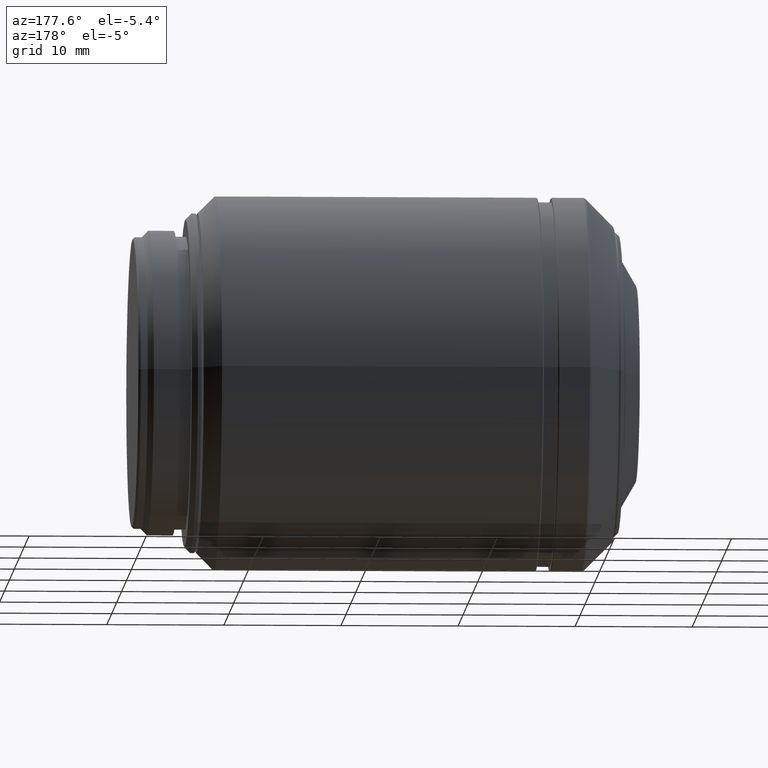
[diagram: clean part render]
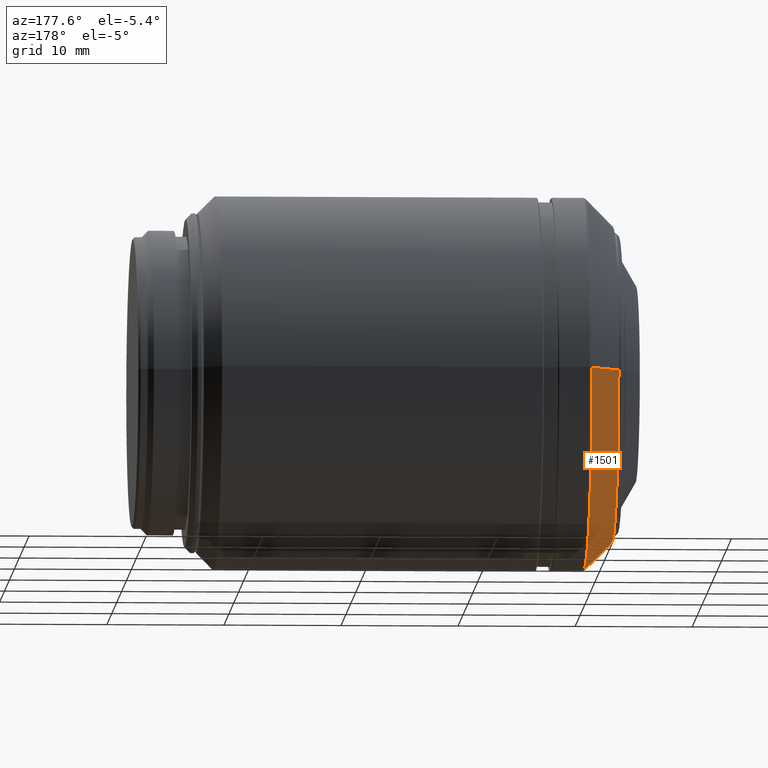
[diagram: same view with one face highlighted and labeled with its STEP entity id]
A machine part, auxiliary view. The second image highlights one B-rep face of the part: STEP entity #1501.
In plain terms, the highlighted conical surface has half-angle 45 deg.
Its self-contained STEP definition (entity closure, byte-faithful):
#31 = DIRECTION ( 'NONE',  ( 0.7071067811865480168, -0.7071067811865470176, 0.000000000000000000 ) ) ;
#52 = CARTESIAN_POINT ( 'NONE',  ( -7.740000000000000213, 13.50000000000000000, -1.653273178848930022E-15 ) ) ;
#53 = DIRECTION ( 'NONE',  ( 0.7071067811865474617, 0.7071067811865474617, -8.659560562354911904E-17 ) ) ;
#57 = ORIENTED_EDGE ( 'NONE', *, *, #393, .T. ) ;
#142 = VERTEX_POINT ( 'NONE', #559 ) ;
#173 = EDGE_CURVE ( 'NONE', #1019, #1447, #615, .T. ) ;
#179 = CARTESIAN_POINT ( 'NONE',  ( -7.740000000000000213, -5.166296783913079974E-15, 0.000000000000000000 ) ) ;
#201 = DIRECTION ( 'NONE',  ( 1.000000000000000000, 1.415423776414539960E-16, 0.000000000000000000 ) ) ;
#203 = CARTESIAN_POINT ( 'NONE',  ( -7.740000000000000213, -13.50000000000000000, 0.000000000000000000 ) ) ;
#320 = EDGE_CURVE ( 'NONE', #1019, #142, #1432, .T. ) ;
#335 = EDGE_LOOP ( 'NONE', ( #530, #57, #371, #1289 ) ) ;
#371 = ORIENTED_EDGE ( 'NONE', *, *, #1485, .F. ) ;
#373 = CARTESIAN_POINT ( 'NONE',  ( -5.339999999999999858, -15.90000000000000036, 0.000000000000000000 ) ) ;
#393 = EDGE_CURVE ( 'NONE', #1447, #649, #858, .T. ) ;
#417 = CARTESIAN_POINT ( 'NONE',  ( -5.339999999999999858, 15.90000000000000036, -1.947188410644289802E-15 ) ) ;
#460 = FACE_OUTER_BOUND ( 'NONE', #335, .T. ) ;
#530 = ORIENTED_EDGE ( 'NONE', *, *, #173, .T. ) ;
#559 = CARTESIAN_POINT ( 'NONE',  ( -5.339999999999999858, -15.90000000000000036, 0.000000000000000000 ) ) ;
#615 = CIRCLE ( 'NONE', #641, 13.50000000000000000 ) ;
#641 = AXIS2_PLACEMENT_3D ( 'NONE', #179, #787, #801 ) ;
#649 = VERTEX_POINT ( 'NONE', #894 ) ;
#652 = DIRECTION ( 'NONE',  ( -1.636531581110195409E-16, 1.000000000000000000, 0.000000000000000000 ) ) ;
#787 = DIRECTION ( 'NONE',  ( 1.000000000000000000, 1.415423776414539960E-16, 0.000000000000000000 ) ) ;
#801 = DIRECTION ( 'NONE',  ( -1.284980352575412699E-16, 1.000000000000000000, 0.000000000000000000 ) ) ;
#836 = AXIS2_PLACEMENT_3D ( 'NONE', #900, #1139, #652 ) ;
#858 = LINE ( 'NONE', #417, #1435 ) ;
#894 = CARTESIAN_POINT ( 'NONE',  ( -5.339999999999999858, 15.90000000000000036, -1.947188410644289802E-15 ) ) ;
#900 = CARTESIAN_POINT ( 'NONE',  ( -5.339999999999999858, -4.826595077573589358E-15, 0.000000000000000000 ) ) ;
#962 = AXIS2_PLACEMENT_3D ( 'NONE', #1024, #201, #1031 ) ;
#1019 = VERTEX_POINT ( 'NONE', #203 ) ;
#1024 = CARTESIAN_POINT ( 'NONE',  ( -5.339999999999999858, -4.826595077573589358E-15, 0.000000000000000000 ) ) ;
#1031 = DIRECTION ( 'NONE',  ( 1.636531581110195409E-16, -1.000000000000000000, 0.000000000000000000 ) ) ;
#1085 = VECTOR ( 'NONE', #31, 1000.000000000000000 ) ;
#1139 = DIRECTION ( 'NONE',  ( 1.000000000000000000, 1.415423776414539960E-16, 0.000000000000000000 ) ) ;
#1243 = CONICAL_SURFACE ( 'NONE', #962, 15.90000000000000036, 0.7853981633974476129 ) ;
#1289 = ORIENTED_EDGE ( 'NONE', *, *, #320, .F. ) ;
#1312 = CIRCLE ( 'NONE', #836, 15.90000000000000036 ) ;
#1432 = LINE ( 'NONE', #373, #1085 ) ;
#1435 = VECTOR ( 'NONE', #53, 1000.000000000000114 ) ;
#1447 = VERTEX_POINT ( 'NONE', #52 ) ;
#1485 = EDGE_CURVE ( 'NONE', #142, #649, #1312, .T. ) ;
#1501 = ADVANCED_FACE ( 'NONE', ( #460 ), #1243, .T. ) ;